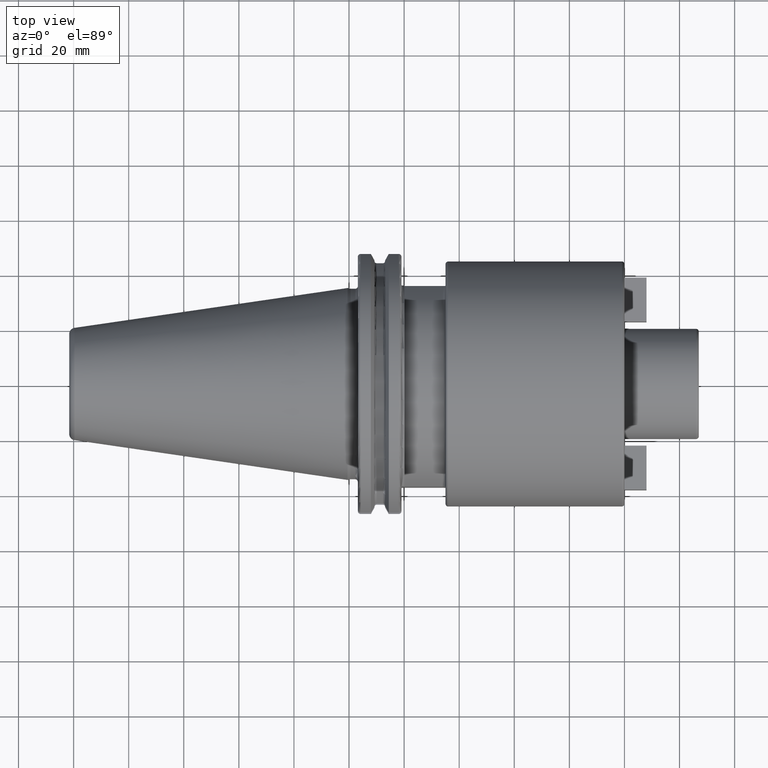
[diagram: clean part render]
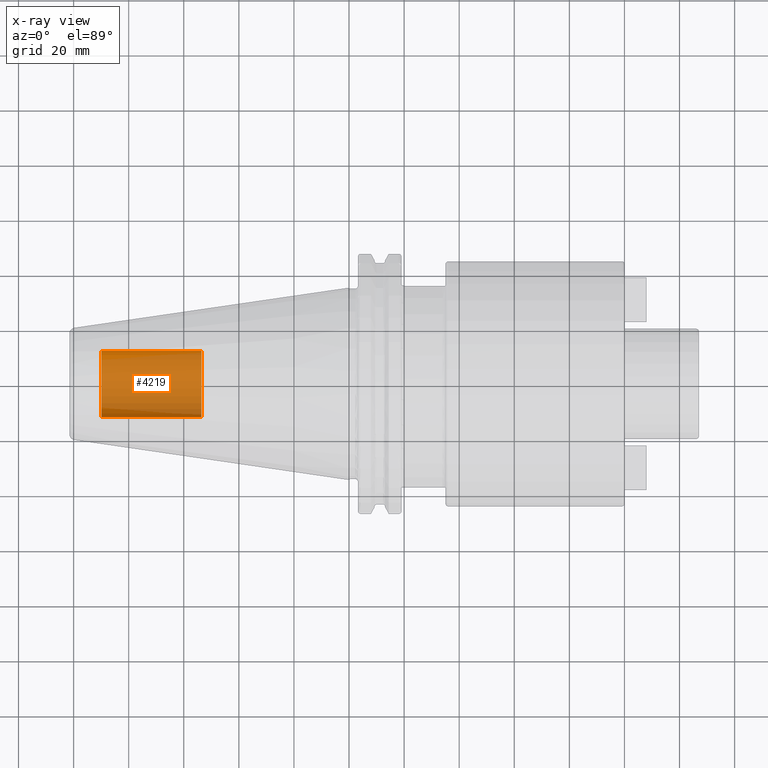
[diagram: x-ray — body ghosted, one internal face saturated and labeled with its STEP entity id]
A machine part, top view, then the same camera in x-ray: the body is ghosted and one INTERNAL B-rep face — a face not visible from any outside direction — is saturated and labeled: STEP entity #4219.
In plain terms, the highlighted cylindrical surface (edge-blend (fillet) strip) has radius 12.0032 mm, axis along (1, 0, 0).
Its self-contained STEP definition (entity closure, byte-faithful):
#4154=CARTESIAN_POINT('',(-8.985E1,0.E0,0.E0));
#4155=DIRECTION('',(-1.E0,0.E0,0.E0));
#4156=DIRECTION('',(0.E0,1.E0,0.E0));
#4157=AXIS2_PLACEMENT_3D('',#4154,#4155,#4156);
#4159=DIRECTION('',(1.E0,0.E0,0.E0));
#4160=VECTOR('',#4159,3.625E1);
#4161=CARTESIAN_POINT('',(-8.985E1,-1.200325E1,0.E0));
#4162=LINE('',#4161,#4160);
#4168=DIRECTION('',(1.E0,0.E0,0.E0));
#4169=VECTOR('',#4168,3.625E1);
#4170=CARTESIAN_POINT('',(-8.985E1,1.200325E1,0.E0));
#4171=LINE('',#4170,#4169);
#4177=CARTESIAN_POINT('',(-5.36E1,0.E0,0.E0));
#4178=DIRECTION('',(1.E0,0.E0,0.E0));
#4179=DIRECTION('',(0.E0,-1.E0,0.E0));
#4180=AXIS2_PLACEMENT_3D('',#4177,#4178,#4179);
#4192=CARTESIAN_POINT('',(-8.985E1,1.200325E1,0.E0));
#4193=CARTESIAN_POINT('',(-8.985E1,-1.200325E1,0.E0));
#4194=VERTEX_POINT('',#4192);
#4195=VERTEX_POINT('',#4193);
#4196=CARTESIAN_POINT('',(-5.36E1,1.200325E1,0.E0));
#4197=CARTESIAN_POINT('',(-5.36E1,-1.200325E1,0.E0));
#4198=VERTEX_POINT('',#4196);
#4199=VERTEX_POINT('',#4197);
#4204=CARTESIAN_POINT('',(-8.985E1,0.E0,0.E0));
#4205=DIRECTION('',(1.E0,0.E0,0.E0));
#4206=DIRECTION('',(0.E0,1.E0,0.E0));
#4207=AXIS2_PLACEMENT_3D('',#4204,#4205,#4206);
#4208=CYLINDRICAL_SURFACE('',#4207,1.200325E1);
#4210=ORIENTED_EDGE('',*,*,#4209,.T.);
#4212=ORIENTED_EDGE('',*,*,#4211,.T.);
#4214=ORIENTED_EDGE('',*,*,#4213,.T.);
#4216=ORIENTED_EDGE('',*,*,#4215,.F.);
#4217=EDGE_LOOP('',(#4210,#4212,#4214,#4216));
#4218=FACE_OUTER_BOUND('',#4217,.F.);
#4219=ADVANCED_FACE('',(#4218),#4208,.T.);
#4158=CIRCLE('',#4157,1.200325E1);
#4181=CIRCLE('',#4180,1.200325E1);
#4209=EDGE_CURVE('',#4194,#4195,#4158,.T.);
#4211=EDGE_CURVE('',#4195,#4199,#4162,.T.);
#4213=EDGE_CURVE('',#4199,#4198,#4181,.T.);
#4215=EDGE_CURVE('',#4194,#4198,#4171,.T.);